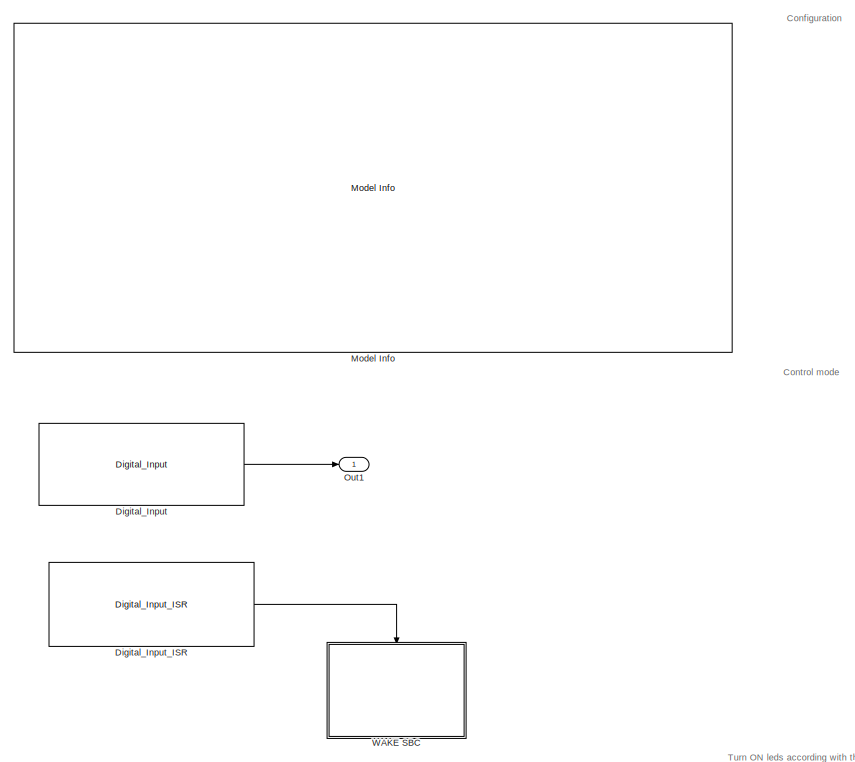
[diagram: root canvas - part 1/3, middle left region]
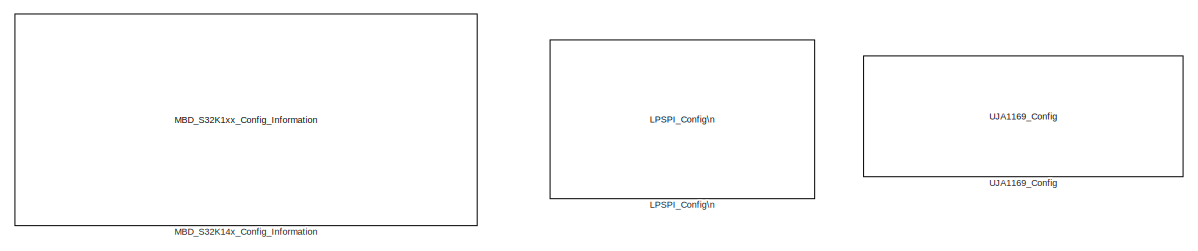
[diagram: root canvas - part 2/3, top right region]
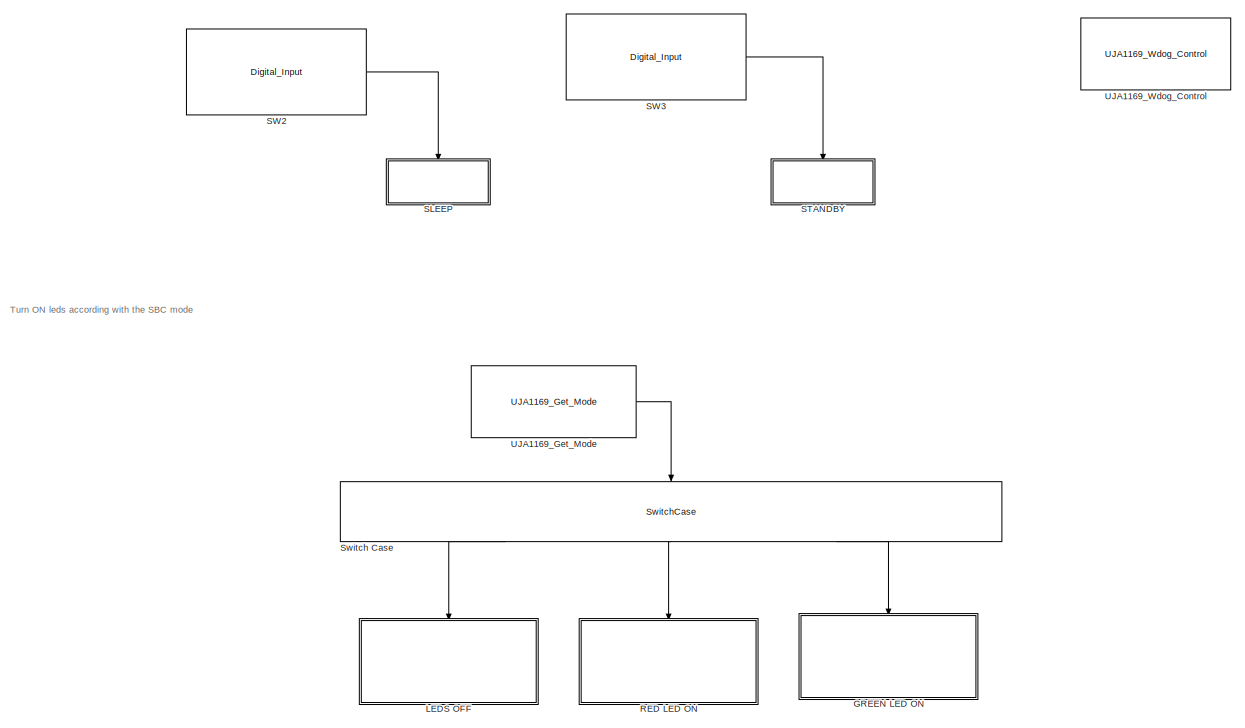
[diagram: root canvas - part 3/3, bottom center region]
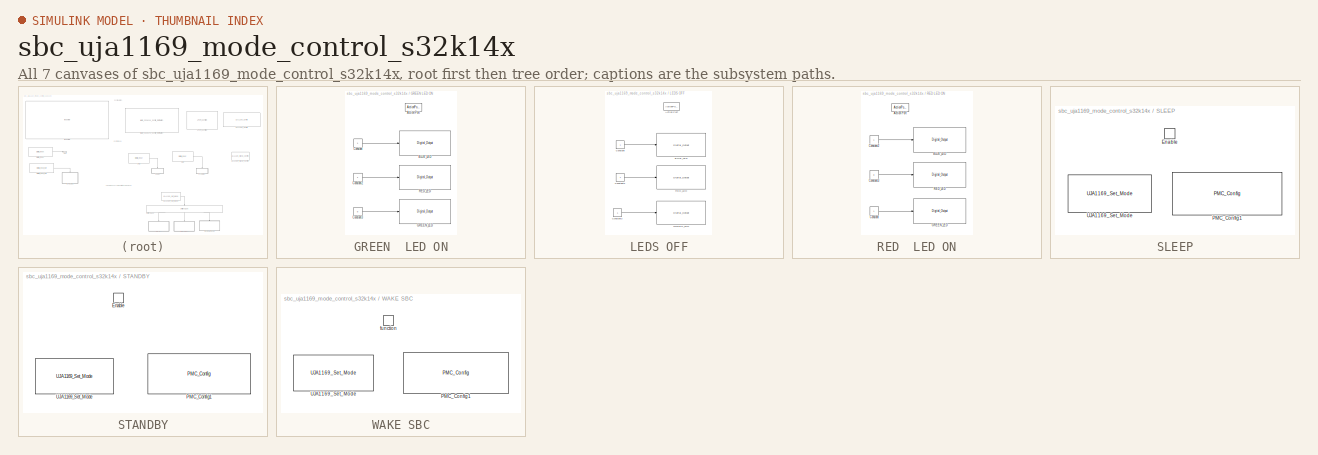
[diagram: thumbnail index - all 7 canvases of the model, root first then tree order]
MODEL sbc_uja1169_mode_control_s32k14x
KIND model
CONFIG InitFcn = mbd_s32k_consistency_checks(bdroot(gcs));
BLOCK [Reference] Digital_Input  REF=mbd_s32k1xx_ec_toolbox/GPIO Blocks/Digital_Input
  Ports = [0, 1]
  SID = 437
  SourceBlock = mbd_s32k1xx_ec_toolbox/GPIO Blocks/Digital_Input
  SourceType = gpio_s32k_input
  gpio_pin = PTE4: [PTE4 | Port E I/O]
  passive_filter = off
  pull_resistor = None
BLOCK [Reference] Digital_Input_ISR  REF=mbd_s32k1xx_ec_toolbox/GPIO Blocks/Digital_Input_ISR
  Ports = [0, 1]
  SID = 436
  SourceBlock = mbd_s32k1xx_ec_toolbox/GPIO Blocks/Digital_Input_ISR
  SourceType = gpi_s32k_isr
  gpio_pin = PTE4: [PTE4 | Port E I/O]
  irqc = on falling-edge
  prio = 2
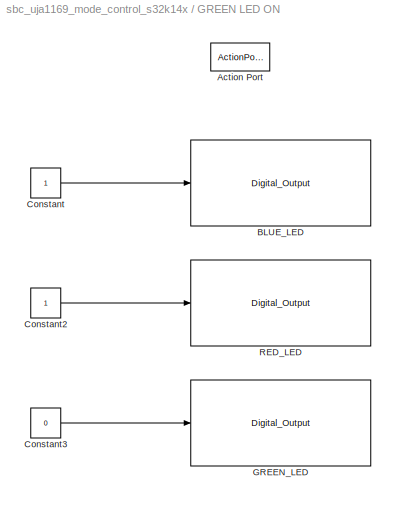
BLOCK [SubSystem] GREEN  LED ON
  Ports = [0, 0, 0, 0, 0, 0, 0, 1]
  RequestExecContextInheritance = off
  SID = 392
  TreatAsAtomicUnit = on
  Variant = off
BLOCK [ActionPort] GREEN  LED ON/Action Port
  SID = 393
BLOCK [Reference] GREEN  LED ON/BLUE_LED  REF=mbd_s32k1xx_ec_toolbox/GPIO Blocks/Digital_Output
  Ports = [1]
  SID = 746
  SourceBlock = mbd_s32k1xx_ec_toolbox/GPIO Blocks/Digital_Output
  SourceType = gpio_s32k_output
  drive_strength = Low
  gpio_pin = PTD0: [PTD0 | Port D I/O]
  init_val = Low
BLOCK [Constant] GREEN  LED ON/Constant
  OutDataTypeStr = boolean
  SID = 394
BLOCK [Constant] GREEN  LED ON/Constant2
  OutDataTypeStr = boolean
  SID = 395
BLOCK [Constant] GREEN  LED ON/Constant3
  OutDataTypeStr = boolean
  SID = 396
  Value = 0
BLOCK [Reference] GREEN  LED ON/GREEN_LED  REF=mbd_s32k1xx_ec_toolbox/GPIO Blocks/Digital_Output
  Ports = [1]
  SID = 748
  SourceBlock = mbd_s32k1xx_ec_toolbox/GPIO Blocks/Digital_Output
  SourceType = gpio_s32k_output
  drive_strength = Low
  gpio_pin = PTD16: [PTD16 | Port D I/O]
  init_val = Low
BLOCK [Reference] GREEN  LED ON/RED_LED  REF=mbd_s32k1xx_ec_toolbox/GPIO Blocks/Digital_Output
  Ports = [1]
  SID = 747
  SourceBlock = mbd_s32k1xx_ec_toolbox/GPIO Blocks/Digital_Output
  SourceType = gpio_s32k_output
  drive_strength = Low
  gpio_pin = PTD15: [PTD15 | Port D I/O]
  init_val = Low
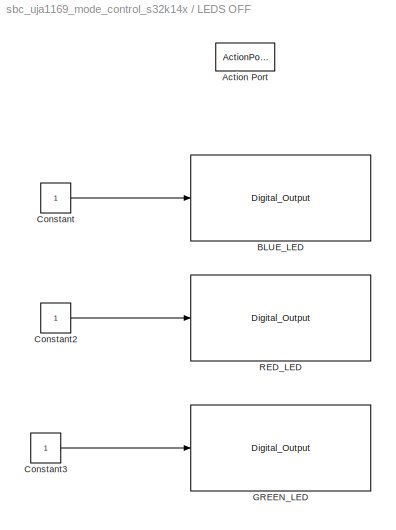
BLOCK [SubSystem] LEDS OFF
  Ports = [0, 0, 0, 0, 0, 0, 0, 1]
  RequestExecContextInheritance = off
  SID = 424
  TreatAsAtomicUnit = on
  Variant = off
BLOCK [ActionPort] LEDS OFF/Action Port
  SID = 425
BLOCK [Reference] LEDS OFF/BLUE_LED  REF=mbd_s32k1xx_ec_toolbox/GPIO Blocks/Digital_Output
  Ports = [1]
  SID = 740
  SourceBlock = mbd_s32k1xx_ec_toolbox/GPIO Blocks/Digital_Output
  SourceType = gpio_s32k_output
  drive_strength = Low
  gpio_pin = PTD0: [PTD0 | Port D I/O]
  init_val = Low
BLOCK [Constant] LEDS OFF/Constant
  OutDataTypeStr = boolean
  SID = 427
BLOCK [Constant] LEDS OFF/Constant2
  OutDataTypeStr = boolean
  SID = 428
BLOCK [Constant] LEDS OFF/Constant3
  OutDataTypeStr = boolean
  SID = 429
BLOCK [Reference] LEDS OFF/GREEN_LED  REF=mbd_s32k1xx_ec_toolbox/GPIO Blocks/Digital_Output
  Ports = [1]
  SID = 742
  SourceBlock = mbd_s32k1xx_ec_toolbox/GPIO Blocks/Digital_Output
  SourceType = gpio_s32k_output
  drive_strength = Low
  gpio_pin = PTD16: [PTD16 | Port D I/O]
  init_val = Low
BLOCK [Reference] LEDS OFF/RED_LED  REF=mbd_s32k1xx_ec_toolbox/GPIO Blocks/Digital_Output
  Ports = [1]
  SID = 741
  SourceBlock = mbd_s32k1xx_ec_toolbox/GPIO Blocks/Digital_Output
  SourceType = gpio_s32k_output
  drive_strength = Low
  gpio_pin = PTD15: [PTD15 | Port D I/O]
  init_val = Low
BLOCK [Reference] LPSPI_Config\n  REF=mbd_s32k1xx_ec_toolbox/Communication Blocks/SPI Blocks/LPSPI_Config\n
  BaudRate = 300000
  BitOrder = MSB first
  CPHA = 1
  CPOL = 0
  ContinuousTransfer = off
  InstanceNumber = 1
  PCSPol = ActiveLow
  Ports = []
  Priority = 1
  Role = Master
  SID = 447
  ShowAdvanced = on
  SourceBlock = mbd_s32k1xx_ec_toolbox/Communication Blocks/SPI Blocks/LPSPI_Config\n
  SourceType = lpspi_s32k_config
  TransferSize = 16
  WhichPCS = 3
  pcs0 = PTD3: [LPSPI1_PCS0 | Peripheral Chip Select 0]
  pcs1 = PTA6: [LPSPI1_PCS1 | Peripheral Chip Select 1]
  pcs2 = PTA16: [LPSPI1_PCS2 | Peripheral Chip Select 2]
  pcs3 = PTB17: [LPSPI1_PCS3 | Peripheral Chip Select 3]
  sck = PTB14: [LPSPI1_SCK | LPSPI Serial Clock I/O]
  sin = PTB15: [LPSPI1_SIN | LPSPI Serial Data Input]
  sout = PTB16: [LPSPI1_SOUT | LPSPI Serial Data Output]
BLOCK [Reference] MBD_S32K14x_Config_Information  REF=mbd_s32k1xx_ec_toolbox/MBD_S32K1xx_Config_Information
  ADC_PcrCheckEnDis = off
  AMMCLIB_PcrCheckEnDis = off
  CMP_PcrCheckEnDis = off
  CSEc_PcrCheckEnDis = off
  ConfigParams_PcrCheckEnDis = on
  FM_PcrCheckEnDis = off
  FTM_Dual_Edge_Inputs_PcrCheckEnDis = off
  FTM_Hall_Sensor_Inputs_PcrCheckEnDis = on
  FTM_Input_Edge_Inputs_PcrCheckEnDis = off
  FTM_PWM_PcrCheckEnDis = on
  FTM_Quadrature_Inputs_PcrCheckEnDis = off
  FlexCAN_PcrCheckEnDis = off
  FlexIO_PcrCheckEnDis = off
  GPIO_InputPcrCheckEnDis = on
  GPIO_OutputPcrCheckEnDis = on
  LIN_PcrCheckEnDis = on
  LPI2C_PcrCheckEnDis = off
  LPSPI_PcrCheckEnDis = on
  LPTMR_PcrCheckEnDis = off
  LPUART_PcrCheckEnDis = off
  ModelRef_PcrCheckEnDis = on
  PDB0_PcrCheckEnDis = off
  PIT_PcrCheckEnDis = off
  Ports = []
  Profile_PcrCheckEnDis = off
  RTC_PcrCheckEnDis = off
  SBC_PcrCheckEnDis = on
  SID = 456
  SourceBlock = mbd_s32k1xx_ec_toolbox/MBD_S32K1xx_Config_Information
  SourceType = MBDTBX_EC_S32K
  WDOG_PcrCheckEnDis = on
  config_params = []
  disp_str = Target : S32K144-64KB_SRAM\nPackage : 100-pin\nSystem clock : 80 MHz\nXTAL clock : External 8 MHz\nCompiler : IAR\nTarget Type : FLASH\nDownload Code after build : off\nStep Tick Interrupt Priority : 15
  ds_import_enable = on
  eDMA_PcrCheckEnDis = off
  gcc_target_assemble_opts = -mcpu=cortex-m4 -mthumb -mfloat-abi=hard -mfpu=fpv4-sp-d16 -g
  gcc_target_compile_opts = -mcpu=cortex-m4 -mthumb -mfloat-abi=hard -mfpu=fpv4-sp-d16 -O1 -g -gstrict-dwarf
  gcc_target_default_lcf = on
  gcc_target_link_opts = -mcpu=cortex-m4 -mthumb -mfloat-abi=hard -mfpu=fpv4-sp-d16
  gcc_target_user_lcf = S32K144_48_flash.ld
  ghs_target_assemble_opts = -cpu=cortexm4f -fpu=vfpv4_d16
  ghs_target_compile_opts = -cpu=cortexm4f -thumb -DARM_MATH_CM4 -fpu=vfpv4_d16 -fsingle -Ogeneral -Wundef -Wimplicit-int -Wshadow -Wtrigraphs --no_commons --gnu_asm -gnu99 -gdwarf-2 -G
  ghs_target_default_lcf = off
  ghs_target_link_opts = -cpu=cortexm4f -thumb -fpu=vfpv4_d16
  ghs_target_user_lcf = S32K144_48_flash.ld
  iar_target_assemble_opts = --cpu Cortex-M4F --thumb --fpu VFPv4_sp
  iar_target_compile_opts = --cpu=Cortex-M4F --thumb --fpu=VFPv4_sp -Ol -e --debug --dlib_config normal
  iar_target_default_lcf = off
  iar_target_link_opts = --no_exceptions --vfe --inline
  iar_target_user_lcf = S32K144_48_flash.icf
  mbdt_ver = 0
  mcu_steptick_prio = 15
  mcu_steptick_timer = LPIT Channel 0
  mcu_system_clock_freq = 80
  mcu_target_name = S32K144
  mcu_target_package = 64-LQFP
  mcu_target_sram_size = 48KB
  mcu_xtal_freq = External 8
  pil_download_enable = off
  pil_download_rate = 57600
  pil_opensda_drive = Custom
  pil_opensda_drive_custom = D
  pil_uart_instance = 0
  pil_uart_rx = PTA2: [LPUART0_RX | Receive]
  pil_uart_tx = PTA3: [LPUART0_TX | Transmit]
  rbl_com_port = Custom
  rbl_com_port_custom = COM1
  rbl_download_enable = on
  rbl_download_interface = OpenSDA
  rbl_restart_request = off
  rbl_start_delay = 5000000
  target_compiler = GCC
  target_memory = FLASH
BLOCK [Reference] Model Info  REF=simulink/Model-Wide\nUtilities/Model Info
  DisplayStringWithTags = Model Name: %<ModelName>\n\nDescription: %<Description>
  Frame = on
  HorizontalTextAlignment = Left
  LeftAlignmentValue = 0.02
  MaskDisplayString = Model Name: sbc_uja1169_mode_control_s32k14x\\n\\nDescription: This model demonstrates how to use Power modes of SBC_UJA1169.\\nInitially, the SBC is in Normal mode, and with SW2/SW3 it goes in Standby/Sleep mode. The SBC wake-up is done by pressing SW9.\\n\\nValidation: \\n - GREEN Led should be on (SBC in Normal mode)\\n - Press SW3 to send SBC in Standby mode(RED led should be on)\\n - Press SW...<+720ch>
  Ports = []
  SID = 416
  SourceBlock = simulink/Model-Wide\nUtilities/Model Info
  SourceProductBaseCode = SL
  SourceProductName = Simulink
  SourceType = CMBlock
BLOCK [Outport] Out1
  IconDisplay = Port number
  SID = 356
BLOCK [SubSystem] RED  LED ON
  Ports = [0, 0, 0, 0, 0, 0, 0, 1]
  RequestExecContextInheritance = off
  SID = 384
  TreatAsAtomicUnit = on
  Variant = off
BLOCK [ActionPort] RED  LED ON/Action Port
  SID = 385
BLOCK [Reference] RED  LED ON/BLUE_LED  REF=mbd_s32k1xx_ec_toolbox/GPIO Blocks/Digital_Output
  Ports = [1]
  SID = 743
  SourceBlock = mbd_s32k1xx_ec_toolbox/GPIO Blocks/Digital_Output
  SourceType = gpio_s32k_output
  drive_strength = Low
  gpio_pin = PTD0: [PTD0 | Port D I/O]
  init_val = Low
BLOCK [Constant] RED  LED ON/Constant
  OutDataTypeStr = boolean
  SID = 386
BLOCK [Constant] RED  LED ON/Constant2
  OutDataTypeStr = boolean
  SID = 387
BLOCK [Constant] RED  LED ON/Constant3
  OutDataTypeStr = boolean
  SID = 388
  Value = 0
BLOCK [Reference] RED  LED ON/GREEN_LED  REF=mbd_s32k1xx_ec_toolbox/GPIO Blocks/Digital_Output
  Ports = [1]
  SID = 745
  SourceBlock = mbd_s32k1xx_ec_toolbox/GPIO Blocks/Digital_Output
  SourceType = gpio_s32k_output
  drive_strength = Low
  gpio_pin = PTD16: [PTD16 | Port D I/O]
  init_val = Low
BLOCK [Reference] RED  LED ON/RED_LED  REF=mbd_s32k1xx_ec_toolbox/GPIO Blocks/Digital_Output
  Ports = [1]
  SID = 744
  SourceBlock = mbd_s32k1xx_ec_toolbox/GPIO Blocks/Digital_Output
  SourceType = gpio_s32k_output
  drive_strength = Low
  gpio_pin = PTD15: [PTD15 | Port D I/O]
  init_val = Low
BLOCK [SubSystem] SLEEP
  Ports = [0, 0, 1]
  RequestExecContextInheritance = off
  SID = 148
  TreatAsAtomicUnit = on
  Variant = off
BLOCK [EnablePort] SLEEP/Enable
  Ports = []
  SID = 150
BLOCK [Reference] SLEEP/PMC_Config1  REF=mbd_s32k1xx_ec_toolbox/Core and System Blocks/PMC Blocks/PMC_Config
  Ports = []
  SID = 442
  SourceBlock = mbd_s32k1xx_ec_toolbox/Core and System Blocks/PMC Blocks/PMC_Config
  SourceType = pmc_s32k_config
  callback_after = off
  callback_before = off
  callback_before_after = off
  power_mode = Stop System and Bus clocks (STOP1)
  show_adv_opts = off
  sleep_on_exit = off
BLOCK [Reference] SLEEP/UJA1169_Set_Mode  REF=mbd_sbc_ec_toolbox/UJA116x/UJA1169_Set_Mode
  Ports = []
  SID = 457
  SourceBlock = mbd_sbc_ec_toolbox/UJA116x/UJA1169_Set_Mode
  SourceType = sbc_uja1169_s32k_set_mode
  modeCtrl = Sleep
  status = off
BLOCK [SubSystem] STANDBY
  Ports = [0, 0, 1]
  RequestExecContextInheritance = off
  SID = 215
  TreatAsAtomicUnit = on
  Variant = off
BLOCK [EnablePort] STANDBY/Enable
  Ports = []
  SID = 216
BLOCK [Reference] STANDBY/PMC_Config1  REF=mbd_s32k1xx_ec_toolbox/Core and System Blocks/PMC Blocks/PMC_Config
  Ports = []
  SID = 444
  SourceBlock = mbd_s32k1xx_ec_toolbox/Core and System Blocks/PMC Blocks/PMC_Config
  SourceType = pmc_s32k_config
  callback_after = off
  callback_before = off
  callback_before_after = off
  power_mode = Stop System and Bus clocks (STOP1)
  show_adv_opts = off
  sleep_on_exit = off
BLOCK [Reference] STANDBY/UJA1169_Set_Mode  REF=mbd_sbc_ec_toolbox/UJA116x/UJA1169_Set_Mode
  Ports = []
  SID = 458
  SourceBlock = mbd_sbc_ec_toolbox/UJA116x/UJA1169_Set_Mode
  SourceType = sbc_uja1169_s32k_set_mode
  modeCtrl = Standby
  status = off
BLOCK [Reference] SW2  REF=mbd_s32k1xx_ec_toolbox/GPIO Blocks/Digital_Input
  Ports = [0, 1]
  SID = 147
  SourceBlock = mbd_s32k1xx_ec_toolbox/GPIO Blocks/Digital_Input
  SourceType = gpio_s32k_input
  gpio_pin = PTC12: [PTC12 | Port C I/O]
  passive_filter = off
  pull_resistor = Pulldown
BLOCK [Reference] SW3  REF=mbd_s32k1xx_ec_toolbox/GPIO Blocks/Digital_Input
  Ports = [0, 1]
  SID = 209
  SourceBlock = mbd_s32k1xx_ec_toolbox/GPIO Blocks/Digital_Input
  SourceType = gpio_s32k_input
  gpio_pin = PTC13: [PTC13 | Port C I/O]
  passive_filter = off
  pull_resistor = Pulldown
BLOCK [SwitchCase] Switch Case
  CaseConditions = {1,4,7}
  Ports = [1, 3]
  SID = 401
  ShowDefaultCase = off
BLOCK [Reference] UJA1169_Config  REF=mbd_sbc_ec_toolbox/UJA116x/UJA1169_Config
  CANfailure = off
  CANmodeCtrl = Offline
  CANsilence = off
  CANwkUp = on
  DataLength = 0
  FDPartial = off
  FDPartialOK = off
  FDcontrol = off
  ID1 = 0
  ID2 = 0
  ID3 = 0
  ID4 = 0
  IDmask1 = 0
  IDmask2 = 0
  IDmask3 = 0
  IDmask4 = 0
  IdFormat = 11-bit
  LHCtrl = Floating
  Lock0 = off
  Lock1 = off
  Lock2 = off
  Lock3 = off
  Lock4 = off
  Lock5 = off
  Lock6 = off
  NominalPer = 128 ms
  PartialNetwData = Don't care
  Ports = []
  ResetTresh = 90
  SID = 455
  SourceBlock = mbd_sbc_ec_toolbox/UJA116x/UJA1169_Config
  SourceType = sbc_uja1169_s32k_config
  V1underv = off
  V2overv = off
  V2underv = off
  VextConfig = V2C OFF
  WdogModeCtrl = Autonomous
  dataMask0 = 0
  dataMask1 = 0
  dataMask2 = 0
  dataMask3 = 0
  dataMask4 = 0
  dataMask5 = 0
  dataMask6 = 0
  dataMask7 = 0
  dataRate = 50 kbit/s
  deviceModel = UJA1169TK/F
  fallingEdge = on
  modeCtrl = NORMAL
  overtempWrng = off
  pdc = higher value
  risingEdge = on
  spiFailure = off
BLOCK [Reference] UJA1169_Get_Mode  REF=mbd_sbc_ec_toolbox/UJA116x/UJA1169_Get_Mode
  Ports = [0, 1]
  SID = 460
  SourceBlock = mbd_sbc_ec_toolbox/UJA116x/UJA1169_Get_Mode
  SourceType = sbc_uja169_s32k_get_mode
BLOCK [Reference] UJA1169_Wdog_Control  REF=mbd_sbc_ec_toolbox/UJA116x/UJA1169_Wdog_Control
  ModeCtrl = Window
  NominalPer = 128 ms
  Ports = []
  SID = 459
  SourceBlock = mbd_sbc_ec_toolbox/UJA116x/UJA1169_Wdog_Control
  SourceType = sbc_uja1169_s32k_wdog_control
  mode = off
  period = off
  reset = on
BLOCK [SubSystem] WAKE SBC
  Ports = [0, 0, 0, 1]
  RequestExecContextInheritance = off
  SID = 279
  TreatAsAtomicUnit = on
  Variant = off
BLOCK [Reference] WAKE SBC/PMC_Config1  REF=mbd_s32k1xx_ec_toolbox/Core and System Blocks/PMC Blocks/PMC_Config
  Ports = []
  SID = 445
  SourceBlock = mbd_s32k1xx_ec_toolbox/Core and System Blocks/PMC Blocks/PMC_Config
  SourceType = pmc_s32k_config
  callback_after = off
  callback_before = off
  callback_before_after = off
  power_mode = High Speed Run (HSRUN)
  show_adv_opts = off
  sleep_on_exit = off
BLOCK [Reference] WAKE SBC/UJA1169_Set_Mode  REF=mbd_sbc_ec_toolbox/UJA116x/UJA1169_Set_Mode
  Ports = []
  SID = 461
  SourceBlock = mbd_sbc_ec_toolbox/UJA116x/UJA1169_Set_Mode
  SourceType = sbc_uja1169_s32k_set_mode
  modeCtrl = Normal
  status = off
BLOCK [TriggerPort] WAKE SBC/function
  Ports = []
  SID = 305
  StatesWhenEnabling = held
  TriggerType = function-call
  VariantControl = Variant
ANNOTATION (root): Configuration
ANNOTATION (root): Control mode
ANNOTATION (root): Turn ON leds according with the SBC mode
LINE Digital_Input:1 -> Out1:1
LINE Digital_Input_ISR:1 -> WAKE SBC:trigger
LINE GREEN  LED ON/Constant2:1 -> GREEN  LED ON/RED_LED:1
LINE GREEN  LED ON/Constant3:1 -> GREEN  LED ON/GREEN_LED:1
LINE GREEN  LED ON/Constant:1 -> GREEN  LED ON/BLUE_LED:1
LINE LEDS OFF/Constant2:1 -> LEDS OFF/RED_LED:1
LINE LEDS OFF/Constant3:1 -> LEDS OFF/GREEN_LED:1
LINE LEDS OFF/Constant:1 -> LEDS OFF/BLUE_LED:1
LINE RED  LED ON/Constant2:1 -> RED  LED ON/BLUE_LED:1
LINE RED  LED ON/Constant3:1 -> RED  LED ON/RED_LED:1
LINE RED  LED ON/Constant:1 -> RED  LED ON/GREEN_LED:1
LINE SW2:1 -> SLEEP:enable
LINE SW3:1 -> STANDBY:enable
LINE Switch Case:1 -> LEDS OFF:ifaction
LINE Switch Case:2 -> RED  LED ON:ifaction
LINE Switch Case:3 -> GREEN  LED ON:ifaction
LINE UJA1169_Get_Mode:1 -> Switch Case:1
